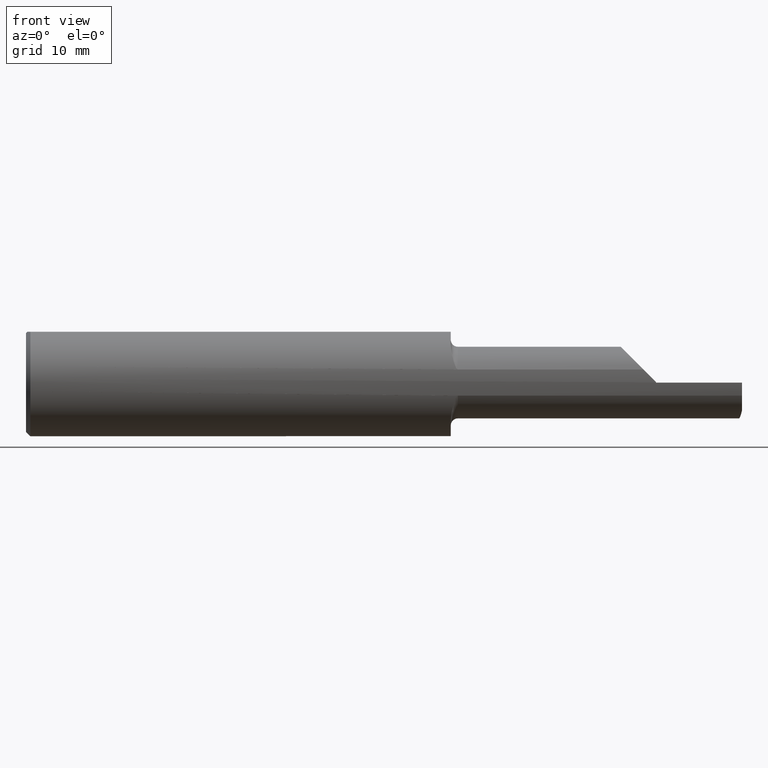
[diagram: clean part render]
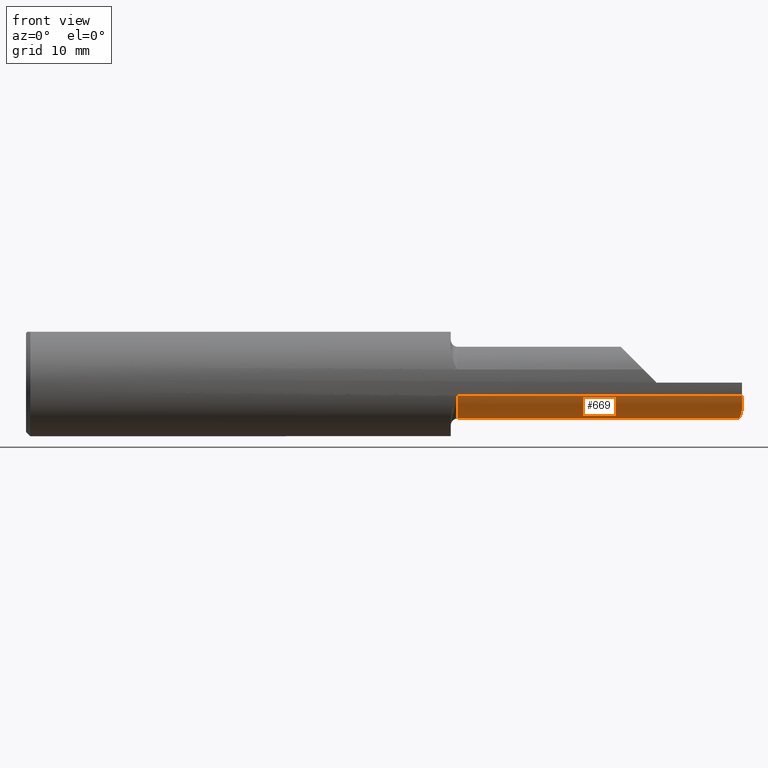
[diagram: same view with one face highlighted and labeled with its STEP entity id]
A machine part, front view. The second image highlights one B-rep face of the part: STEP entity #669.
In plain terms, the highlighted cylindrical surface (edge-blend (fillet) strip) has radius 3.175 mm, axis along (-1, -0, -0).
Its self-contained STEP definition (entity closure, byte-faithful):
#5 = CARTESIAN_POINT ( 'NONE',  ( 2.489842622564257368, -0.06535000000000003306, -0.1249999999999999861 ) ) ;
#8 = DIRECTION ( 'NONE',  ( 1.000000000000000000, -0.000000000000000000, -0.000000000000000000 ) ) ;
#10 = LINE ( 'NONE', #221, #512 ) ;
#25 = CARTESIAN_POINT ( 'NONE',  ( 1.483000000000000096, -0.06535000000000003306, 0.000000000000000000 ) ) ;
#32 = AXIS2_PLACEMENT_3D ( 'NONE', #25, #245, #108 ) ;
#42 = VECTOR ( 'NONE', #996, 39.37007874015748143 ) ;
#62 = DIRECTION ( 'NONE',  ( 0.000000000000000000, 0.000000000000000000, -1.000000000000000000 ) ) ;
#63 = DIRECTION ( 'NONE',  ( -1.000000000000000000, -0.000000000000000000, -0.000000000000000000 ) ) ;
#92 = AXIS2_PLACEMENT_3D ( 'NONE', #540, #8, #237 ) ;
#101 = EDGE_CURVE ( 'NONE', #130, #289, #373, .T. ) ;
#108 = DIRECTION ( 'NONE',  ( 0.000000000000000000, 0.000000000000000000, 1.000000000000000000 ) ) ;
#116 = EDGE_CURVE ( 'NONE', #845, #884, #597, .T. ) ;
#130 = VERTEX_POINT ( 'NONE', #443 ) ;
#137 = CARTESIAN_POINT ( 'NONE',  ( 1.507999999999999785, -0.1816805279265493456, -0.04574066322573715898 ) ) ;
#165 = CARTESIAN_POINT ( 'NONE',  ( 2.500000000000000000, -0.1431654907182394187, -0.09782509598400397632 ) ) ;
#178 = VERTEX_POINT ( 'NONE', #272 ) ;
#221 = CARTESIAN_POINT ( 'NONE',  ( 1.483000000000000096, -0.06535000000000000531, -0.1249999999999999306 ) ) ;
#225 =( BOUNDED_CURVE ( )  B_SPLINE_CURVE ( 3, ( #165, #848, #620, #5 ),
 .UNSPECIFIED., .F., .T. ) 
 B_SPLINE_CURVE_WITH_KNOTS ( ( 4, 4 ),
 ( 4.993931103440154118, 5.665894734938331290 ),
 .UNSPECIFIED. ) 
 CURVE ( )  GEOMETRIC_REPRESENTATION_ITEM ( )  RATIONAL_B_SPLINE_CURVE ( ( 1.000000000000000000, 0.9627247091652257893, 0.9627247091652257893, 1.000000000000000000 ) ) 
 REPRESENTATION_ITEM ( '' )  );
#237 = DIRECTION ( 'NONE',  ( 0.000000000000000000, 0.000000000000000000, 1.000000000000000000 ) ) ;
#245 = DIRECTION ( 'NONE',  ( -1.000000000000000000, -0.000000000000000000, -0.000000000000000000 ) ) ;
#272 = CARTESIAN_POINT ( 'NONE',  ( 1.507999999999999785, -0.06535000000000000531, -0.1249999999999999306 ) ) ;
#289 = VERTEX_POINT ( 'NONE', #777 ) ;
#312 = DIRECTION ( 'NONE',  ( -1.000000000000000000, -0.000000000000000000, -0.000000000000000000 ) ) ;
#327 = FACE_OUTER_BOUND ( 'NONE', #945, .T. ) ;
#342 = EDGE_CURVE ( 'NONE', #289, #178, #10, .T. ) ;
#346 = CIRCLE ( 'NONE', #92, 0.1249999999999999584 ) ;
#356 = ORIENTED_EDGE ( 'NONE', *, *, #101, .F. ) ;
#373 = LINE ( 'NONE', #676, #630 ) ;
#418 = ORIENTED_EDGE ( 'NONE', *, *, #557, .F. ) ;
#442 = CARTESIAN_POINT ( 'NONE',  ( 1.507999999999999785, -0.06535000000000003306, 0.000000000000000000 ) ) ;
#443 = CARTESIAN_POINT ( 'NONE',  ( 2.489842622564257368, -0.06535000000000003306, -0.1249999999999999861 ) ) ;
#445 = CIRCLE ( 'NONE', #904, 0.1249999999999999306 ) ;
#447 = ORIENTED_EDGE ( 'NONE', *, *, #887, .T. ) ;
#511 = EDGE_CURVE ( 'NONE', #984, #130, #225, .T. ) ;
#512 = VECTOR ( 'NONE', #312, 39.37007874015748143 ) ;
#540 = CARTESIAN_POINT ( 'NONE',  ( 2.500000000000000000, -0.06535000000000003306, 0.000000000000000000 ) ) ;
#552 = ORIENTED_EDGE ( 'NONE', *, *, #116, .T. ) ;
#557 = EDGE_CURVE ( 'NONE', #845, #984, #346, .T. ) ;
#578 = CYLINDRICAL_SURFACE ( 'NONE', #32, 0.1249999999999999306 ) ;
#589 = CARTESIAN_POINT ( 'NONE',  ( 1.856500000000000039, -0.1816805279265493456, -0.04574066322573715898 ) ) ;
#597 = LINE ( 'NONE', #589, #42 ) ;
#620 = CARTESIAN_POINT ( 'NONE',  ( 2.492339414901687533, -0.09388846700596117922, -0.1249999999999999306 ) ) ;
#630 = VECTOR ( 'NONE', #63, 39.37007874015748143 ) ;
#651 = ORIENTED_EDGE ( 'NONE', *, *, #342, .F. ) ;
#669 = ADVANCED_FACE ( 'NONE', ( #327 ), #578, .T. ) ;
#676 = CARTESIAN_POINT ( 'NONE',  ( 2.500000000000000000, -0.06535000000000003306, -0.1249999999999999861 ) ) ;
#762 = DIRECTION ( 'NONE',  ( 1.000000000000000000, 0.000000000000000000, 0.000000000000000000 ) ) ;
#777 = CARTESIAN_POINT ( 'NONE',  ( 2.244504986094757459, -0.06535000000000003306, -0.1249999999999999861 ) ) ;
#814 = CARTESIAN_POINT ( 'NONE',  ( 2.500000000000000000, -0.1816805279265493733, -0.04574066322573724225 ) ) ;
#815 = ORIENTED_EDGE ( 'NONE', *, *, #511, .F. ) ;
#845 = VERTEX_POINT ( 'NONE', #814 ) ;
#848 = CARTESIAN_POINT ( 'NONE',  ( 2.495856300306567466, -0.1208312645254836365, -0.1155909744993251220 ) ) ;
#884 = VERTEX_POINT ( 'NONE', #137 ) ;
#887 = EDGE_CURVE ( 'NONE', #884, #178, #445, .T. ) ;
#904 = AXIS2_PLACEMENT_3D ( 'NONE', #442, #762, #62 ) ;
#928 = CARTESIAN_POINT ( 'NONE',  ( 2.500000000000000000, -0.1431654907182394187, -0.09782509598400397632 ) ) ;
#945 = EDGE_LOOP ( 'NONE', ( #651, #356, #815, #418, #552, #447 ) ) ;
#984 = VERTEX_POINT ( 'NONE', #928 ) ;
#996 = DIRECTION ( 'NONE',  ( -1.000000000000000000, -0.000000000000000000, -0.000000000000000000 ) ) ;